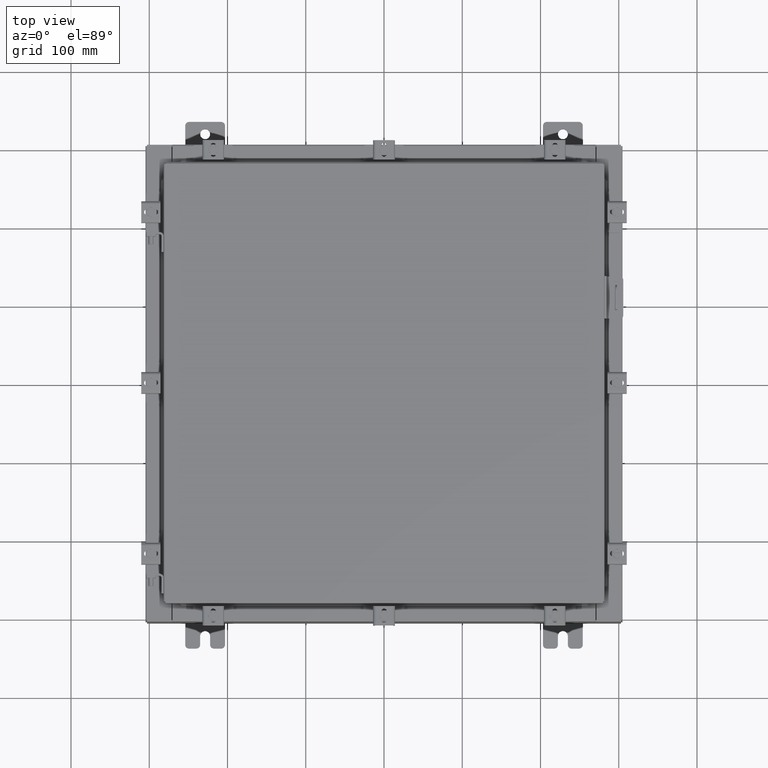
[diagram: clean part render]
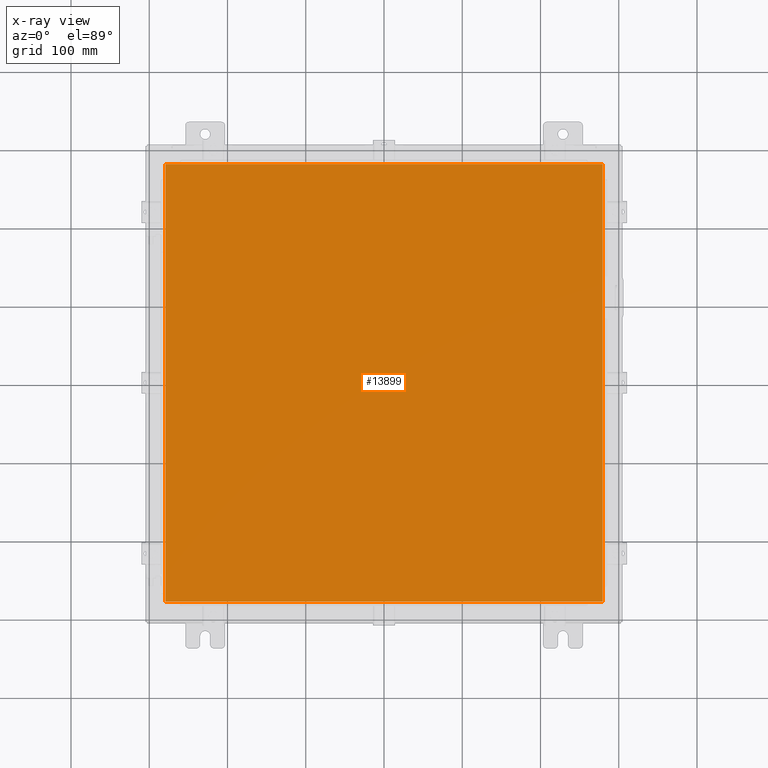
[diagram: x-ray — body ghosted, one internal face saturated and labeled with its STEP entity id]
A machine part, top view, then the same camera in x-ray: the body is ghosted and one INTERNAL B-rep face — a face not visible from any outside direction — is saturated and labeled: STEP entity #13899.
In plain terms, the highlighted planar face has unit normal (0, 0, -1).
Its self-contained STEP definition (entity closure, byte-faithful):
#293 = PLANE ( 'NONE',  #22414 ) ;
#1520 = VECTOR ( 'NONE', #20077, 39.37007874015748100 ) ;
#2724 = DIRECTION ( 'NONE',  ( 1.000000000000000000, -0.0000000000000000000, -0.0000000000000000000 ) ) ;
#4375 = CARTESIAN_POINT ( 'NONE',  ( -11.00630000000000300, 11.00629999999999600, -0.07470000000000015500 ) ) ;
#4590 = LINE ( 'NONE', #11014, #13328 ) ;
#4706 = EDGE_CURVE ( 'NONE', #21470, #5131, #4590, .T. ) ;
#5131 = VERTEX_POINT ( 'NONE', #14529 ) ;
#5371 = EDGE_CURVE ( 'NONE', #18171, #21470, #11093, .T. ) ;
#6205 = EDGE_CURVE ( 'NONE', #15372, #18171, #6691, .T. ) ;
#6691 = LINE ( 'NONE', #4375, #1520 ) ;
#7495 = CARTESIAN_POINT ( 'NONE',  ( 11.00629999999999400, -11.00630000000000100, -0.07470000000000015500 ) ) ;
#7772 = CARTESIAN_POINT ( 'NONE',  ( 11.00629999999999400, 11.00629999999999600, -0.07470000000000015500 ) ) ;
#7886 = EDGE_LOOP ( 'NONE', ( #20987, #12963, #11693, #21453 ) ) ;
#8996 = FACE_OUTER_BOUND ( 'NONE', #7886, .T. ) ;
#9054 = DIRECTION ( 'NONE',  ( 0.0000000000000000000, 0.0000000000000000000, -1.000000000000000000 ) ) ;
#9288 = DIRECTION ( 'NONE',  ( 0.0000000000000000000, 1.000000000000000000, 0.0000000000000000000 ) ) ;
#9550 = DIRECTION ( 'NONE',  ( -1.000000000000000000, -0.0000000000000000000, -0.0000000000000000000 ) ) ;
#11014 = CARTESIAN_POINT ( 'NONE',  ( 11.00629999999999400, -11.00630000000000100, -0.07470000000000015500 ) ) ;
#11093 = LINE ( 'NONE', #13179, #15735 ) ;
#11116 = VECTOR ( 'NONE', #9550, 39.37007874015748100 ) ;
#11693 = ORIENTED_EDGE ( 'NONE', *, *, #6205, .F. ) ;
#11799 = CARTESIAN_POINT ( 'NONE',  ( -11.00630000000000300, 11.00629999999999600, -0.07470000000000015500 ) ) ;
#12963 = ORIENTED_EDGE ( 'NONE', *, *, #5371, .F. ) ;
#13179 = CARTESIAN_POINT ( 'NONE',  ( -11.00630000000000300, -11.00630000000000100, -0.07470000000000015500 ) ) ;
#13328 = VECTOR ( 'NONE', #9288, 39.37007874015748100 ) ;
#13610 = CARTESIAN_POINT ( 'NONE',  ( -11.00630000000000300, -11.00630000000000100, -0.07470000000000015500 ) ) ;
#13899 = ADVANCED_FACE ( 'NONE', ( #8996 ), #293, .T. ) ;
#14529 = CARTESIAN_POINT ( 'NONE',  ( 11.00629999999999400, 11.00629999999999600, -0.07470000000000015500 ) ) ;
#14755 = EDGE_CURVE ( 'NONE', #5131, #15372, #15758, .T. ) ;
#15372 = VERTEX_POINT ( 'NONE', #11799 ) ;
#15735 = VECTOR ( 'NONE', #2724, 39.37007874015748100 ) ;
#15758 = LINE ( 'NONE', #7772, #11116 ) ;
#18171 = VERTEX_POINT ( 'NONE', #13610 ) ;
#19343 = CARTESIAN_POINT ( 'NONE',  ( 0.0000000000000000000, 0.0000000000000000000, -0.07470000000000015500 ) ) ;
#20077 = DIRECTION ( 'NONE',  ( 0.0000000000000000000, -1.000000000000000000, 0.0000000000000000000 ) ) ;
#20987 = ORIENTED_EDGE ( 'NONE', *, *, #4706, .F. ) ;
#21248 = DIRECTION ( 'NONE',  ( -1.000000000000000000, 0.0000000000000000000, -0.0000000000000000000 ) ) ;
#21453 = ORIENTED_EDGE ( 'NONE', *, *, #14755, .F. ) ;
#21470 = VERTEX_POINT ( 'NONE', #7495 ) ;
#22414 = AXIS2_PLACEMENT_3D ( 'NONE', #19343, #9054, #21248 ) ;